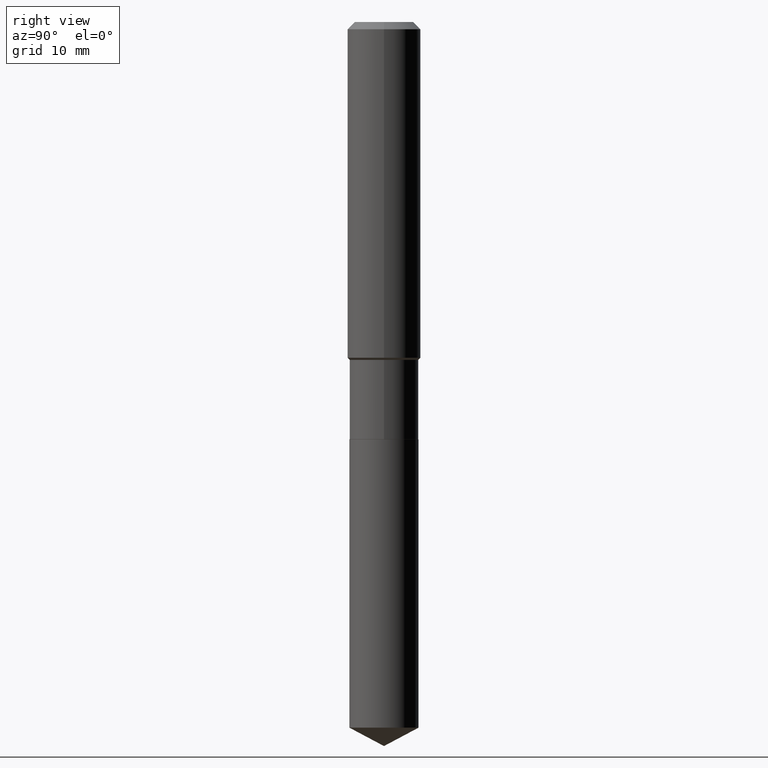
[diagram: clean part render]
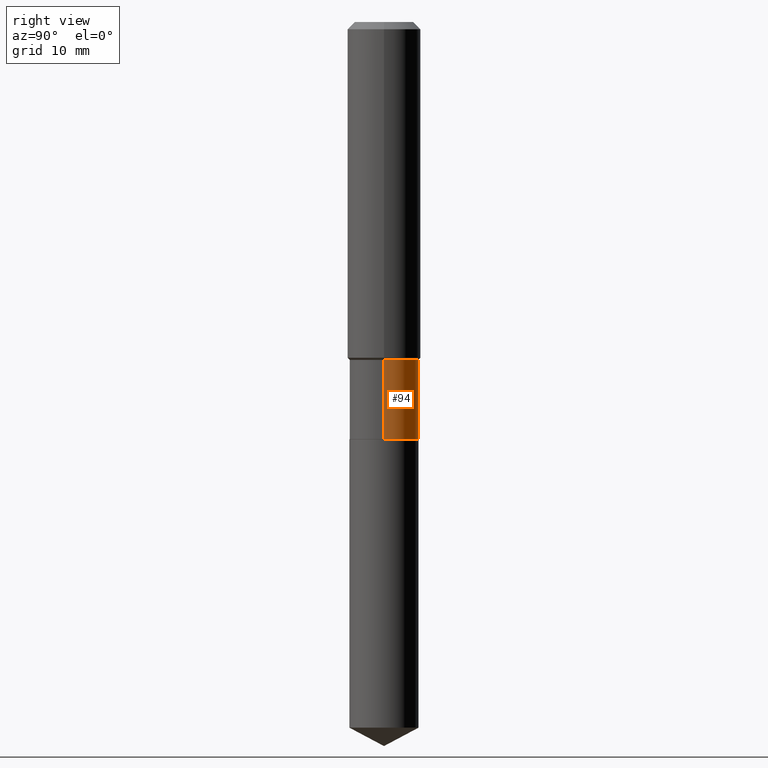
[diagram: same view with one face highlighted and labeled with its STEP entity id]
A machine part, right view. The second image highlights one B-rep face of the part: STEP entity #94.
In plain terms, the highlighted cylindrical surface (edge-blend (fillet) strip) has radius 3.7706 mm, axis along (-0, 0, 1).
Its self-contained STEP definition (entity closure, byte-faithful):
#21 = CARTESIAN_POINT ( 'NONE',  ( -0.1484499999999999986, 1.054800691235868716E-15, -7.302159141483407353E-30 ) ) ;
#50 = VERTEX_POINT ( 'NONE', #129 ) ;
#54 = VERTEX_POINT ( 'NONE', #481 ) ;
#57 = FACE_OUTER_BOUND ( 'NONE', #231, .T. ) ;
#61 = DIRECTION ( 'NONE',  ( -2.445468806185136877E-29, 3.491481338843145188E-15, 1.000000000000000000 ) ) ;
#64 = EDGE_CURVE ( 'NONE', #50, #458, #199, .T. ) ;
#70 = EDGE_CURVE ( 'NONE', #50, #84, #272, .T. ) ;
#84 = VERTEX_POINT ( 'NONE', #408 ) ;
#94 = ADVANCED_FACE ( 'NONE', ( #57 ), #279, .T. ) ;
#107 = DIRECTION ( 'NONE',  ( 1.000000000000000000, -6.982962677686264344E-15, 0.000000000000000000 ) ) ;
#123 = EDGE_CURVE ( 'NONE', #84, #54, #409, .T. ) ;
#129 = CARTESIAN_POINT ( 'NONE',  ( 0.1484499999999999986, -7.294053664977210990E-15, -1.792199999999999793 ) ) ;
#163 = AXIS2_PLACEMENT_3D ( 'NONE', #242, #353, #315 ) ;
#165 = CARTESIAN_POINT ( 'NONE',  ( 0.1484499999999999986, -1.036620809502526093E-15, 7.238684423669066410E-30 ) ) ;
#166 = EDGE_CURVE ( 'NONE', #458, #54, #310, .T. ) ;
#169 = AXIS2_PLACEMENT_3D ( 'NONE', #241, #402, #107 ) ;
#172 = ORIENTED_EDGE ( 'NONE', *, *, #166, .F. ) ;
#199 = LINE ( 'NONE', #165, #260 ) ;
#231 = EDGE_LOOP ( 'NONE', ( #470, #392, #172, #488 ) ) ;
#241 = CARTESIAN_POINT ( 'NONE',  ( 3.549108878416488564E-29, -5.067186867063056629E-15, -1.451299999999999812 ) ) ;
#242 = CARTESIAN_POINT ( 'NONE',  ( 4.382769194445001759E-29, -6.257432855474684305E-15, -1.792199999999999793 ) ) ;
#260 = VECTOR ( 'NONE', #479, 39.37007874015748143 ) ;
#263 = CARTESIAN_POINT ( 'NONE',  ( 0.1484499999999999431, -6.103807676565582525E-15, -1.451299999999999812 ) ) ;
#272 = CIRCLE ( 'NONE', #163, 0.1484499999999999986 ) ;
#279 = CYLINDRICAL_SURFACE ( 'NONE', #331, 0.1484499999999999986 ) ;
#286 = DIRECTION ( 'NONE',  ( -2.445468806185136597E-29, 3.491481338843145583E-15, 1.000000000000000000 ) ) ;
#310 = CIRCLE ( 'NONE', #169, 0.1484499999999999431 ) ;
#315 = DIRECTION ( 'NONE',  ( 1.000000000000000000, -6.982962677686268288E-15, 0.000000000000000000 ) ) ;
#331 = AXIS2_PLACEMENT_3D ( 'NONE', #359, #286, #449 ) ;
#353 = DIRECTION ( 'NONE',  ( -2.445468806185136597E-29, 3.491481338843145583E-15, 1.000000000000000000 ) ) ;
#359 = CARTESIAN_POINT ( 'NONE',  ( 0.000000000000000000, 0.000000000000000000, 0.000000000000000000 ) ) ;
#392 = ORIENTED_EDGE ( 'NONE', *, *, #123, .T. ) ;
#402 = DIRECTION ( 'NONE',  ( -2.445468806185136597E-29, 3.491481338843145583E-15, 1.000000000000000000 ) ) ;
#408 = CARTESIAN_POINT ( 'NONE',  ( -0.1484500000000000264, -4.607509170033001160E-15, -1.792199999999999793 ) ) ;
#409 = LINE ( 'NONE', #21, #414 ) ;
#414 = VECTOR ( 'NONE', #61, 39.37007874015748143 ) ;
#449 = DIRECTION ( 'NONE',  ( 1.000000000000000000, -6.982962677686265133E-15, 4.876176775795935793E-29 ) ) ;
#458 = VERTEX_POINT ( 'NONE', #263 ) ;
#470 = ORIENTED_EDGE ( 'NONE', *, *, #70, .T. ) ;
#479 = DIRECTION ( 'NONE',  ( -2.445468806185136877E-29, 3.491481338843145188E-15, 1.000000000000000000 ) ) ;
#481 = CARTESIAN_POINT ( 'NONE',  ( -0.1484499999999999431, -4.607509170033001948E-15, -1.451299999999999812 ) ) ;
#488 = ORIENTED_EDGE ( 'NONE', *, *, #64, .F. ) ;